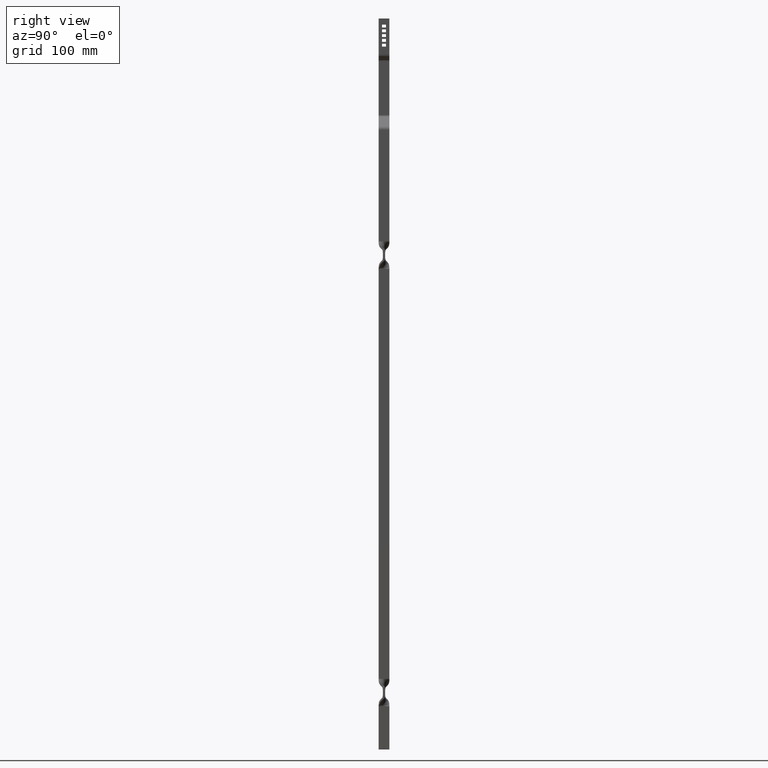
[diagram: clean part render]
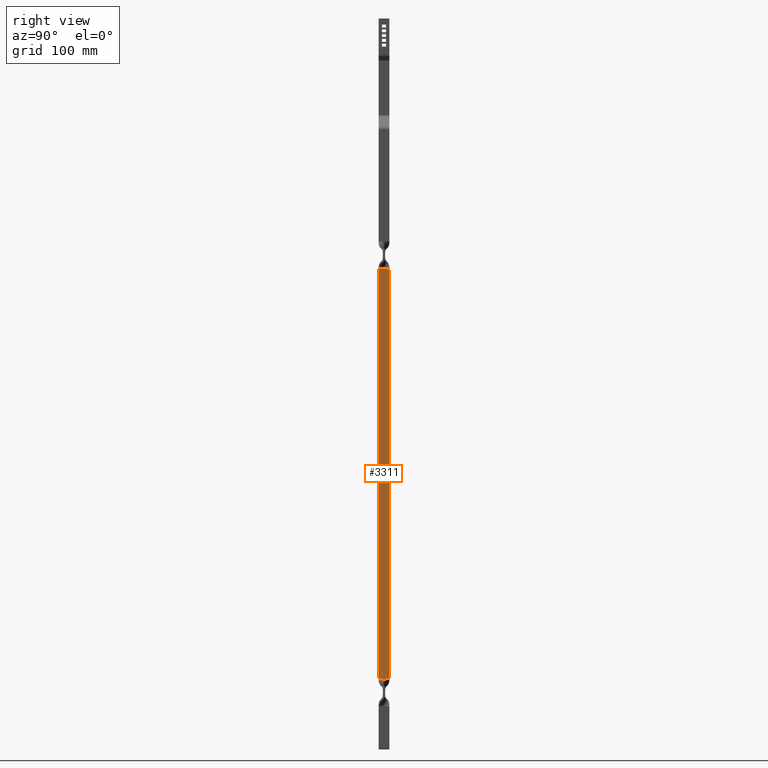
[diagram: same view with one face highlighted and labeled with its STEP entity id]
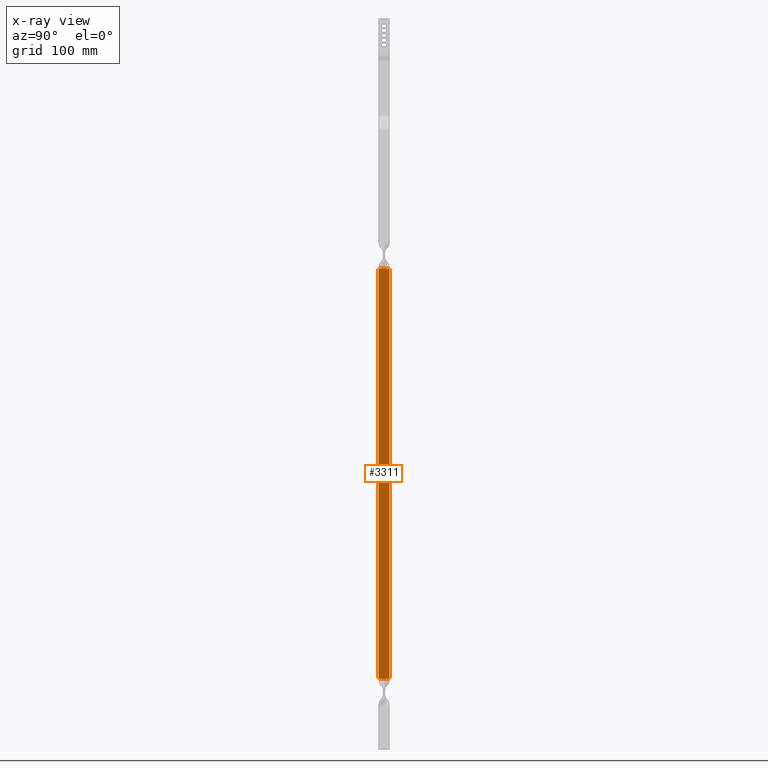
[diagram: x-ray of the same camera — body ghosted, the highlighted face saturated]
A machine part, right view. The second image highlights one B-rep face of the part: STEP entity #3311.
The next image is the same camera in x-ray: the body ghosted, the highlighted face saturated — about 0% of this face is hidden behind the body in this view.
In plain terms, the highlighted face is a freeform B-spline surface patch.
Its self-contained STEP definition (entity closure, byte-faithful):
#505=CARTESIAN_POINT('',(13.499999999008899,-0.271775746040426,-858.499999999863920));
#506=VERTEX_POINT('',#505);
#507=CARTESIAN_POINT('',(13.499999999008899,7.0,-857.289823195396020));
#508=VERTEX_POINT('',#507);
#509=CARTESIAN_POINT('',(13.499999999008899,-0.271775746040426,-858.499999999863920));
#510=CARTESIAN_POINT('',(13.499999999008899,0.331125423669050,-858.381840459066550));
#511=CARTESIAN_POINT('',(13.499999999008940,0.934187228391753,-858.262608892108230));
#512=CARTESIAN_POINT('',(13.499999999008940,2.141573673937968,-858.032512668194500));
#513=CARTESIAN_POINT('',(13.499999999009020,2.746067614053421,-857.921779648496910));
#514=CARTESIAN_POINT('',(13.499999999009020,3.957689163754397,-857.715155313377520));
#515=CARTESIAN_POINT('',(13.499999999008820,4.564574697634858,-857.619239175954590));
#516=CARTESIAN_POINT('',(13.499999999008820,5.780642736340732,-857.443213668817520));
#517=CARTESIAN_POINT('',(13.499999999008899,6.389812878324884,-857.363019223339050));
#518=CARTESIAN_POINT('',(13.499999999008899,7.0,-857.289823195396020));
#519=B_SPLINE_CURVE_WITH_KNOTS('',3,(#509,#510,#511,#512,#513,#514,#515,#516,#517,#518),.UNSPECIFIED.,.F.,.U.,(4,2,2,2,4),(0.0,0.250000000000000,0.500000000000000,0.750000000000000,1.0),.UNSPECIFIED.);
#520=EDGE_CURVE('',#506,#508,#519,.T.);
#646=CARTESIAN_POINT('',(13.499999999008899,-7.0,-857.313138851806910));
#647=VERTEX_POINT('',#646);
#648=CARTESIAN_POINT('',(13.499999999008899,-7.0,-857.313138851806910));
#649=CARTESIAN_POINT('',(13.499999999008899,-6.434661942369429,-857.383037199400630));
#650=CARTESIAN_POINT('',(13.499999999009029,-5.870317070206552,-857.459521844561550));
#651=CARTESIAN_POINT('',(13.499999999009029,-4.743981124448648,-857.628100321972850));
#652=CARTESIAN_POINT('',(13.499999999008800,-4.182003036504530,-857.720280268412920));
#653=CARTESIAN_POINT('',(13.499999999008811,-3.060551510414872,-857.921249716518560));
#654=CARTESIAN_POINT('',(13.499999999008960,-2.501416190335324,-858.030179166496170));
#655=CARTESIAN_POINT('',(13.499999999008960,-1.385497779345710,-858.259857808622540));
#656=CARTESIAN_POINT('',(13.499999999008899,-0.828539089006242,-858.380513480741570));
#657=CARTESIAN_POINT('',(13.499999999008899,-0.271775746042658,-858.499999999864940));
#658=B_SPLINE_CURVE_WITH_KNOTS('',3,(#648,#649,#650,#651,#652,#653,#654,#655,#656,#657),.UNSPECIFIED.,.F.,.U.,(4,2,2,2,4),(0.0,0.250000000000000,0.500000000000000,0.750000000000000,1.0),.UNSPECIFIED.);
#659=EDGE_CURVE('',#647,#506,#658,.T.);
#1136=CARTESIAN_POINT('',(13.499999999999460,-0.271775746181718,-318.499999999966520));
#1137=VERTEX_POINT('',#1136);
#1138=CARTESIAN_POINT('',(13.499999999008880,-7.0,-319.686861149006010));
#1139=VERTEX_POINT('',#1138);
#1140=CARTESIAN_POINT('',(13.499999999999460,-0.271775746181718,-318.499999999966520));
#1141=CARTESIAN_POINT('',(13.499999999008869,-0.828536331738916,-318.619493325945830));
#1142=CARTESIAN_POINT('',(13.499999999008910,-1.385487363985431,-318.740140034472570));
#1143=CARTESIAN_POINT('',(13.499999999008910,-2.501421362468990,-318.969821918366110));
#1144=CARTESIAN_POINT('',(13.499999999008869,-3.060560236290679,-319.078751923802090));
#1145=CARTESIAN_POINT('',(13.499999999008860,-4.182009288089050,-319.279720778747900));
#1146=CARTESIAN_POINT('',(13.499999999008899,-4.743986133490225,-319.371900464385310));
#1147=CARTESIAN_POINT('',(13.499999999008899,-5.870319582568633,-319.540478497045510));
#1148=CARTESIAN_POINT('',(13.499999999008880,-6.434663200772646,-319.616962957078730));
#1149=CARTESIAN_POINT('',(13.499999999008880,-7.0,-319.686861149006010));
#1150=B_SPLINE_CURVE_WITH_KNOTS('',3,(#1140,#1141,#1142,#1143,#1144,#1145,#1146,#1147,#1148,#1149),.UNSPECIFIED.,.F.,.U.,(4,2,2,2,4),(0.0,0.250000000000000,0.500000000000000,0.750000000000000,1.0),.UNSPECIFIED.);
#1151=EDGE_CURVE('',#1137,#1139,#1150,.T.);
#1284=CARTESIAN_POINT('',(13.499999999008880,7.0,-319.710176803428510));
#1285=VERTEX_POINT('',#1284);
#1286=CARTESIAN_POINT('',(13.499999999008880,7.0,-319.710176803428510));
#1287=CARTESIAN_POINT('',(13.499999999008880,6.389812878269135,-319.636980775393000));
#1288=CARTESIAN_POINT('',(13.499999999008850,5.780642736234270,-319.556786329801130));
#1289=CARTESIAN_POINT('',(13.499999999008850,4.564574697445127,-319.380760822342610));
#1290=CARTESIAN_POINT('',(13.499999999008860,3.957689163530790,-319.284844684720610));
#1291=CARTESIAN_POINT('',(13.499999999008860,2.746067613810413,-319.078220348901080));
#1292=CARTESIAN_POINT('',(13.499999999008891,2.141573673692176,-318.967487328855330));
#1293=CARTESIAN_POINT('',(13.499999999008891,0.934187228519385,-318.737391102222890));
#1294=CARTESIAN_POINT('',(13.499999999008949,0.331127847603467,-318.618147172462100));
#1295=CARTESIAN_POINT('',(13.499999999999460,-0.271775746181718,-318.499999999966520));
#1296=B_SPLINE_CURVE_WITH_KNOTS('',3,(#1286,#1287,#1288,#1289,#1290,#1291,#1292,#1293,#1294,#1295),.UNSPECIFIED.,.F.,.U.,(4,2,2,2,4),(0.0,0.250000000000000,0.500000000000000,0.750000000000000,1.0),.UNSPECIFIED.);
#1297=EDGE_CURVE('',#1285,#1137,#1296,.T.);
#3247=CARTESIAN_POINT('',(13.499999999008880,7.0,-319.710176803428510));
#3248=CARTESIAN_POINT('',(13.499999999008899,7.0,-857.289823195396020));
#3249=QUASI_UNIFORM_CURVE('',1,(#3247,#3248),.UNSPECIFIED.,.F.,.U.);
#3250=EDGE_CURVE('',#1285,#508,#3249,.T.);
#3283=CARTESIAN_POINT('',(13.499999999008880,-7.0,-319.686861149006010));
#3284=CARTESIAN_POINT('',(13.499999999008899,-7.0,-857.313138851806910));
#3285=QUASI_UNIFORM_CURVE('',1,(#3283,#3284),.UNSPECIFIED.,.F.,.U.);
#3286=EDGE_CURVE('',#1139,#647,#3285,.T.);
#3298=CARTESIAN_POINT('',(13.499999999008880,-7.699299972865286,-291.527001046596410));
#3299=CARTESIAN_POINT('',(13.499999999008880,-7.699299972865286,-885.473013437162540));
#3300=CARTESIAN_POINT('',(13.499999999008880,7.699300348374547,-291.527001046596410));
#3301=CARTESIAN_POINT('',(13.499999999008880,7.699300348374547,-885.473013437162540));
#3302=B_SPLINE_SURFACE_WITH_KNOTS('',1,1,((#3298,#3300),(#3299,#3301)),.UNSPECIFIED.,.F.,.F.,.U.,(2,2),(2,2),(0.0,593.946012390566120),(0.0,15.398600321239829),.UNSPECIFIED.);
#3303=ORIENTED_EDGE('',*,*,#3286,.T.);
#3304=ORIENTED_EDGE('',*,*,#659,.T.);
#3305=ORIENTED_EDGE('',*,*,#520,.T.);
#3306=ORIENTED_EDGE('',*,*,#3250,.F.);
#3307=ORIENTED_EDGE('',*,*,#1297,.T.);
#3308=ORIENTED_EDGE('',*,*,#1151,.T.);
#3309=EDGE_LOOP('',(#3303,#3304,#3305,#3306,#3307,#3308));
#3310=FACE_OUTER_BOUND('',#3309,.T.);
#3311=ADVANCED_FACE('',(#3310),#3302,.T.);